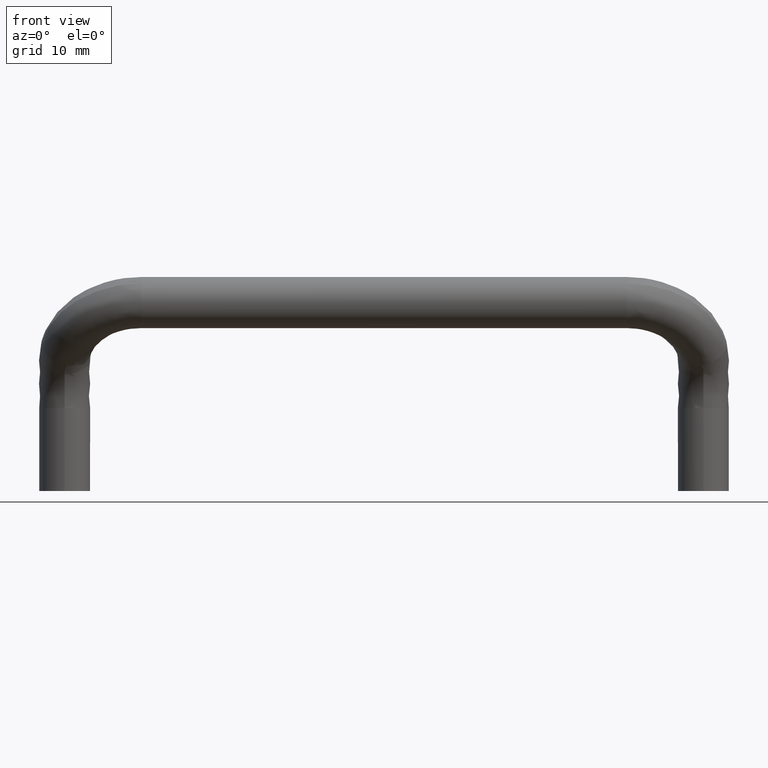
[diagram: clean part render]
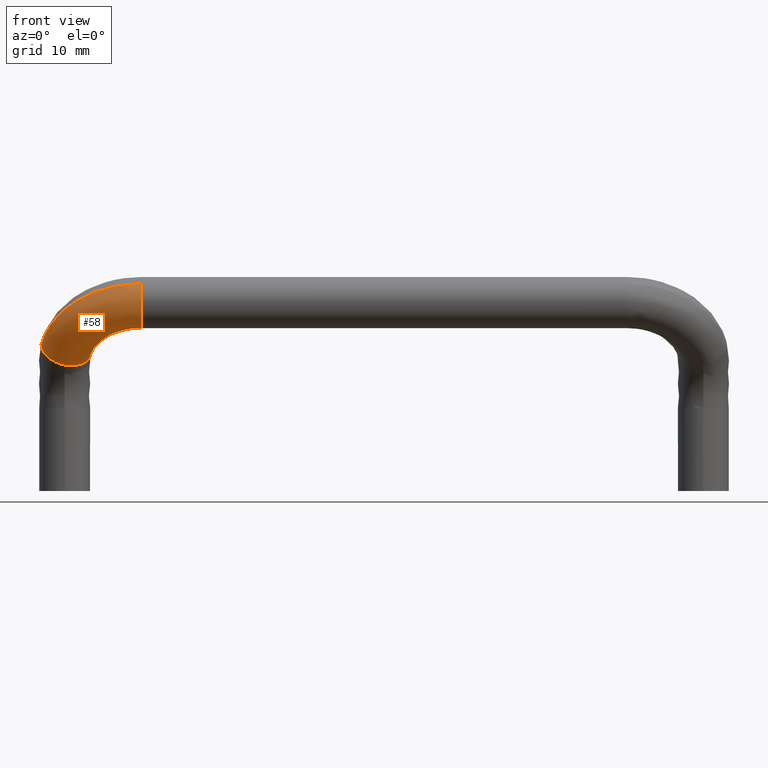
[diagram: same view with one face highlighted and labeled with its STEP entity id]
A machine part, front view. The second image highlights one B-rep face of the part: STEP entity #58.
In plain terms, the highlighted face is a freeform B-spline surface patch.
Its self-contained STEP definition (entity closure, byte-faithful):
#58=ADVANCED_FACE('',(#253),#252,.T.);
#252=( BOUNDED_SURFACE() B_SPLINE_SURFACE( 2,2,((#744,#745,#746,#747,#748),(#749,#750,#751,#752,#753),(#754,#755,#756,#757,#758),(#759,#760,#761,#762,#763),(#764,#765,#766,#767,#768)), .UNSPECIFIED.,.F.,.F.,.F.) B_SPLINE_SURFACE_WITH_KNOTS((3,2,3),(3,2,3),(-3.14159265359E+00,-1.57079632679E+00,0.00000000000E+00),(3.14030993840E+00,3.14159265359E+00,4.49740298663E+00), .UNSPECIFIED. ) GEOMETRIC_REPRESENTATION_ITEM() RATIONAL_B_SPLINE_SURFACE(((9.99522036335E-01,9.99760822855E-01,1.00000000000E+00,7.47193416631E-01,9.30799590468E-01),(7.06768809838E-01,7.06937657405E-01,7.07106781187E-01,5.28345531758E-01,6.58174702346E-01),(9.99522036335E-01,9.99760822855E-01,1.00000000000E+00,7.47193416631E-01,9.30799590468E-01),(7.06768809838E-01,7.06937657405E-01,7.07106781187E-01,5.28345531758E-01,6.58174702346E-01),(9.99522036335E-01,9.99760822855E-01,1.00000000000E+00,7.47193416631E-01,9.30799590468E-01))) REPRESENTATION_ITEM('') SURFACE() );
#253=FACE_OUTER_BOUND('',#769,.T.);
#744=CARTESIAN_POINT('',(-3.79907589977E+01,2.67242340394E+00,1.02372786042E+00));
#745=CARTESIAN_POINT('',(-3.79953794974E+01,2.67241983809E+00,1.02373183170E+00));
#746=CARTESIAN_POINT('',(-3.80000000001E+01,2.67241983809E+00,1.02373183170E+00));
#747=CARTESIAN_POINT('',(-4.45346301897E+01,2.67241983807E+00,1.02373183168E+00));
#748=CARTESIAN_POINT('',(-4.58390042607E+01,6.95037889723E+00,-3.74062187945E+00));
#749=CARTESIAN_POINT('',(-3.79907589977E+01,-3.03844764315E-01,-1.64869197758E+00));
#750=CARTESIAN_POINT('',(-3.79953794973E+01,-3.03848330165E-01,-1.64868800630E+00));
#751=CARTESIAN_POINT('',(-3.80000000001E+01,-3.03848330165E-01,-1.64868800630E+00));
#752=CARTESIAN_POINT('',(-4.45346301896E+01,-3.03848330186E-01,-1.64868800632E+00));
#753=CARTESIAN_POINT('',(-4.58390042606E+01,3.97411072897E+00,-6.41304171745E+00));
#754=CARTESIAN_POINT('',(-3.79861384964E+01,-2.97626281939E+00,1.32757420504E+00));
#755=CARTESIAN_POINT('',(-3.79930692460E+01,-2.97626816816E+00,1.32758016195E+00));
#756=CARTESIAN_POINT('',(-3.80000000001E+01,-2.97626816816E+00,1.32758016195E+00));
#757=CARTESIAN_POINT('',(-4.78019452845E+01,-2.97626816820E+00,1.32758016193E+00));
#758=CARTESIAN_POINT('',(-4.97585063910E+01,3.44067042058E+00,-5.81895040481E+00));
#759=CARTESIAN_POINT('',(-3.79815179952E+01,-5.64868087446E+00,4.30384038765E+00));
#760=CARTESIAN_POINT('',(-3.79907589946E+01,-5.64868800616E+00,4.30384833021E+00));
#761=CARTESIAN_POINT('',(-3.80000000001E+01,-5.64868800616E+00,4.30384833021E+00));
#762=CARTESIAN_POINT('',(-5.10692603793E+01,-5.64868800621E+00,4.30384833017E+00));
#763=CARTESIAN_POINT('',(-5.36780085213E+01,2.90723011218E+00,-5.22485909217E+00));
#764=CARTESIAN_POINT('',(-3.79815179952E+01,-2.67241270621E+00,6.97626022565E+00));
#765=CARTESIAN_POINT('',(-3.79907589946E+01,-2.67241983791E+00,6.97626816821E+00));
#766=CARTESIAN_POINT('',(-3.80000000001E+01,-2.67241983791E+00,6.97626816821E+00));
#767=CARTESIAN_POINT('',(-5.10692603793E+01,-2.67241983795E+00,6.97626816817E+00));
#768=CARTESIAN_POINT('',(-5.36780085213E+01,5.88349828043E+00,-2.55243925417E+00));
#769=EDGE_LOOP('',(#943,#944,#945,#946,#947,#948));
#943=ORIENTED_EDGE('',*,*,#1038,.T.);
#944=ORIENTED_EDGE('',*,*,#1017,.T.);
#945=ORIENTED_EDGE('',*,*,#1053,.F.);
#946=ORIENTED_EDGE('',*,*,#1054,.F.);
#947=ORIENTED_EDGE('',*,*,#1055,.F.);
#948=ORIENTED_EDGE('',*,*,#1056,.T.);
#1017=EDGE_CURVE('',#1148,#1101,#1162,.T.);
#1038=EDGE_CURVE('',#1128,#1148,#1304,.T.);
#1053=EDGE_CURVE('',#1401,#1101,#1402,.T.);
#1054=EDGE_CURVE('',#1408,#1401,#1409,.T.);
#1055=EDGE_CURVE('',#1415,#1408,#1416,.T.);
#1056=EDGE_CURVE('',#1415,#1128,#1422,.T.);
#1101=VERTEX_POINT('',#1543);
#1128=VERTEX_POINT('',#1562);
#1148=VERTEX_POINT('',#1576);
#1162=CIRCLE('',#1589,4.00000000000E+00);
#1304=CIRCLE('',#1689,4.00000000000E+00);
#1401=VERTEX_POINT('',#1747);
#1402=(BOUNDED_CURVE() B_SPLINE_CURVE(2,(#1748,#1749,#1750),.UNSPECIFIED.,.F.,.F.) B_SPLINE_CURVE_WITH_KNOTS((3,3),(3.14159265359E+00,4.49740298204E+00),.UNSPECIFIED.) CURVE() GEOMETRIC_REPRESENTATION_ITEM() RATIONAL_B_SPLINE_CURVE((1.00000000000E+00,7.47193417487E-01,9.30799589226E-01)) REPRESENTATION_ITEM('') );
#1408=VERTEX_POINT('',#1751);
#1409=CIRCLE('',#1755,4.00000000000E+00);
#1415=VERTEX_POINT('',#1756);
#1416=CIRCLE('',#1760,4.00000000000E+00);
#1422=(BOUNDED_CURVE() B_SPLINE_CURVE(3,(#1761,#1762,#1763,#1764,#1765),.UNSPECIFIED.,.F.,.F.) B_SPLINE_CURVE_WITH_KNOTS((4,1,4),(3.14159265359E+00,3.80718739415E+00,4.49740298642E+00),.UNSPECIFIED.) CURVE() GEOMETRIC_REPRESENTATION_ITEM() RATIONAL_B_SPLINE_CURVE((1.00000000000E+00,1.00000000000E+00,1.00000000000E+00,1.00000000000E+00,1.00000000000E+00)) REPRESENTATION_ITEM('') );
#1543=CARTESIAN_POINT('',(-4.58390042607E+01,6.95037889729E+00,-3.74062187955E+00));
#1562=CARTESIAN_POINT('',(-5.36780085214E+01,5.88349828057E+00,-2.55243925429E+00));
#1576=CARTESIAN_POINT('',(-4.97585063910E+01,3.44067042066E+00,-5.81895040492E+00));
#1586=CARTESIAN_POINT('',(-4.97585063910E+01,6.41693858893E+00,-3.14653056692E+00));
#1587=DIRECTION('',(1.99609470330E-01,-6.54659703013E-01,7.29093089122E-01));
#1588=DIRECTION('',(4.17421696156E-13,7.44067042066E-01,6.68104959502E-01));
#1589=AXIS2_PLACEMENT_3D('',#1586,#1587,#1588);
#1686=CARTESIAN_POINT('',(-4.97585063910E+01,6.41693858893E+00,-3.14653056692E+00));
#1687=DIRECTION('',(1.99609470330E-01,-6.54659703013E-01,7.29093089122E-01));
#1688=DIRECTION('',(9.79875532583E-01,1.33360077090E-01,-1.48522828158E-01));
#1689=AXIS2_PLACEMENT_3D('',#1686,#1687,#1688);
#1747=CARTESIAN_POINT('',(-3.80000000001E+01,2.67241983804E+00,1.02373183176E+00));
#1748=CARTESIAN_POINT('',(-3.80000000001E+01,2.67241983809E+00,1.02373183170E+00));
#1749=CARTESIAN_POINT('',(-4.45346301601E+01,2.67241983807E+00,1.02373183168E+00));
#1750=CARTESIAN_POINT('',(-4.58390042536E+01,6.95037887399E+00,-3.74062185357E+00));
#1751=CARTESIAN_POINT('',(-3.80000000001E+01,7.95711153217E-14,7.39274980074E-32));
#1752=CARTESIAN_POINT('',(-3.80000000001E+01,8.06646416329E-14,4.00000000000E+00));
#1753=DIRECTION('',(1.00000000000E+00,0.00000000000E+00,-0.00000000000E+00));
#1754=DIRECTION('',(-0.00000000000E+00,-1.50920942425E-16,-1.00000000000E+00));
#1755=AXIS2_PLACEMENT_3D('',#1752,#1753,#1754);
#1756=CARTESIAN_POINT('',(-3.80000000001E+01,-2.67242059958E+00,6.97626748444E+00));
#1757=CARTESIAN_POINT('',(-3.80000000001E+01,8.06646416329E-14,4.00000000000E+00));
#1758=DIRECTION('',(1.00000000000E+00,0.00000000000E+00,-0.00000000000E+00));
#1759=DIRECTION('',(-0.00000000000E+00,-1.50920942425E-16,-1.00000000000E+00));
#1760=AXIS2_PLACEMENT_3D('',#1757,#1758,#1759);
#1761=CARTESIAN_POINT('',(-3.80000000001E+01,-2.67241983791E+00,6.97626816821E+00));
#1762=CARTESIAN_POINT('',(-4.15657357339E+01,-2.68442001793E+00,6.98963274260E+00));
#1763=CARTESIAN_POINT('',(-4.88677344660E+01,-9.72537383328E-01,5.08311277114E+00));
#1764=CARTESIAN_POINT('',(-5.29640557643E+01,3.46250237135E+00,1.43818630617E-01));
#1765=CARTESIAN_POINT('',(-5.36780085206E+01,5.88349827830E+00,-2.55243925180E+00));